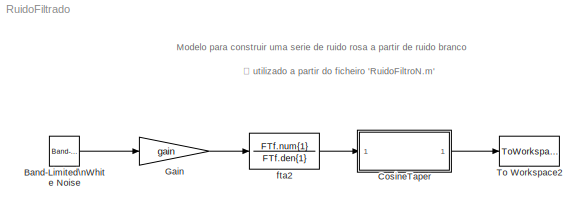
MODEL RuidoFiltrado
KIND model
BLOCK [Reference] Band-Limited\nWhite Noise  REF=simulink/Sources/Band-Limited\nWhite Noise
  Cov = 1
  FunctionWithSeparateData = off
  Ports = [0, 1]
  RTWMemSecDataConstants = Inherit from model
  RTWMemSecDataInternal = Inherit from model
  RTWMemSecDataParameters = Inherit from model
  RTWMemSecFuncExecute = Inherit from model
  RTWMemSecFuncInitTerm = Inherit from model
  SID = 1
  ShowPortLabels = FromPortIcon
  SourceBlock = simulink/Sources/Band-Limited\nWhite Noise
  SourceType = Band-Limited White Noise.
  SystemSampleTime = -1
  Ts = dt
  VectorParams1D = on
  seed = [23341]
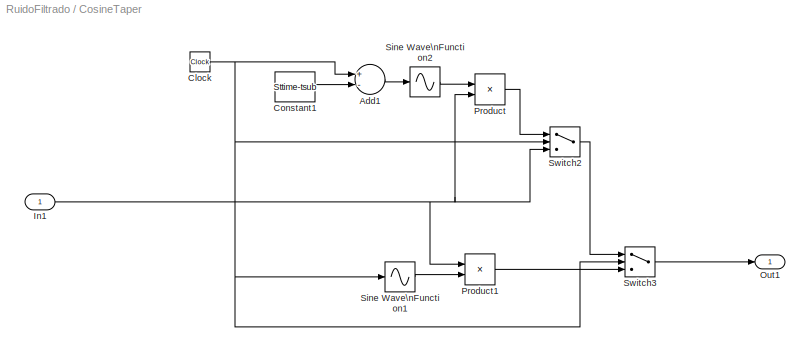
BLOCK [SubSystem] CosineTaper
  FunctionWithSeparateData = off
  MaskHideContents = off
  MinAlgLoopOccurrences = off
  Opaque = off
  Ports = [1, 1]
  PropExecContextOutsideSubsystem = off
  RTWSystemCode = Auto
  RequestExecContextInheritance = off
  SID = 2
  TreatAsAtomicUnit = on
BLOCK [Sum] CosineTaper/Add1
  InputSameDT = off
  Inputs = +-
  OutDataType = sfix(16)
  OutDataTypeMode = Inherit via internal rule
  OutDataTypeStr = Inherit: Inherit via internal rule
  OutScaling = 2^-10
  Ports = [2, 1]
  SID = 4
  SaturateOnIntegerOverflow = off
BLOCK [Clock] CosineTaper/Clock
  Decimation = 10
  SID = 5
BLOCK [Constant] CosineTaper/Constant1
  OutDataType = sfix(16)
  OutScaling = 2^0
  SID = 6
  Value = Sttime-tsub
BLOCK [Inport] CosineTaper/In1
  IconDisplay = Port number
  OutDataType = sfix(16)
  OutScaling = 2^0
  SID = 3
BLOCK [Outport] CosineTaper/Out1
  IconDisplay = Port number
  OutDataType = sfix(16)
  OutScaling = 2^0
  SID = 13
BLOCK [Product] CosineTaper/Product
  InputSameDT = off
  OutDataType = sfix(16)
  OutDataTypeMode = Inherit via internal rule
  OutDataTypeStr = Inherit: Inherit via internal rule
  OutScaling = 2^0
  Ports = [2, 1]
  SID = 7
  SaturateOnIntegerOverflow = off
BLOCK [Product] CosineTaper/Product1
  InputSameDT = off
  OutDataType = sfix(16)
  OutDataTypeMode = Inherit via internal rule
  OutDataTypeStr = Inherit: Inherit via internal rule
  OutScaling = 2^0
  Ports = [2, 1]
  SID = 8
  SaturateOnIntegerOverflow = off
BLOCK [Sin] CosineTaper/Sine Wave\nFunction1
  Amplitude = 0.5
  Bias = 0.5
  Frequency = pi/tsub
  Offset = 0
  Phase = -pi/2
  Ports = [1, 1]
  SID = 9
  SampleTime = 0
  Samples = 10
  TimeSource = Use external signal
BLOCK [Sin] CosineTaper/Sine Wave\nFunction2
  Amplitude = 0.5
  Bias = 0.5
  Frequency = pi/tsub
  Offset = 0
  Phase = pi/2
  Ports = [1, 1]
  SID = 10
  SampleTime = 0
  Samples = 10
  TimeSource = Use external signal
BLOCK [Switch] CosineTaper/Switch2
  InputSameDT = off
  OutDataType = fixdt(1, 16)
  OutScaling = 2^0
  SID = 11
  SaturateOnIntegerOverflow = off
  Threshold = Sttime-tsub
BLOCK [Switch] CosineTaper/Switch3
  InputSameDT = off
  OutDataType = fixdt(1, 16)
  OutScaling = 2^0
  SID = 12
  SaturateOnIntegerOverflow = off
  Threshold = Intime+tsub
BLOCK [Gain] Gain
  Gain = gain
  OutDataType = fixdt(1, 16)
  OutDataTypeMode = Inherit via internal rule
  OutDataTypeStr = Inherit: Inherit via internal rule
  OutScaling = 2^0
  ParamDataTypeStr = Inherit: Inherit via internal rule
  ParameterDataType = fixdt(1, 16)
  ParameterDataTypeMode = Inherit via internal rule
  ParameterScaling = 2^0
  SID = 14
  SaturateOnIntegerOverflow = off
BLOCK [ToWorkspace] To Workspace2
  MaxDataPoints = inf
  Ports = [1]
  SID = 15
  SampleTime = -1
  SaveFormat = Structure With Time
  VariableName = rf
BLOCK [TransferFcn] fta2
  Denominator = FTf.den{1}
  Numerator = FTf.num{1}
  SID = 16
ANNOTATION (root): Modelo para construir uma serie de ruido rosa a partir de ruido branco
ANNOTATION (root): É utilizado a partir do ficheiro 'RuidoFiltroN.m'
LINE Band-Limited\nWhite Noise:1 -> Gain:1
LINE CosineTaper/Add1:1 -> CosineTaper/Sine Wave\nFunction2:1
NET CosineTaper/Clock:1 -> CosineTaper/Add1:1, CosineTaper/Sine Wave\nFunction1:1, CosineTaper/Switch2:2, CosineTaper/Switch3:2
LINE CosineTaper/Constant1:1 -> CosineTaper/Add1:2
NET CosineTaper/In1:1 -> CosineTaper/Product1:1, CosineTaper/Product:2, CosineTaper/Switch2:3
LINE CosineTaper/Product1:1 -> CosineTaper/Switch3:3
LINE CosineTaper/Product:1 -> CosineTaper/Switch2:1
LINE CosineTaper/Sine Wave\nFunction1:1 -> CosineTaper/Product1:2
LINE CosineTaper/Sine Wave\nFunction2:1 -> CosineTaper/Product:1
LINE CosineTaper/Switch2:1 -> CosineTaper/Switch3:1
LINE CosineTaper/Switch3:1 -> CosineTaper/Out1:1
LINE CosineTaper:1 -> To Workspace2:1
LINE Gain:1 -> fta2:1
LINE fta2:1 -> CosineTaper:1
note: NET lines group one-source signal fan-out (src -> all destinations, sorted); 1:1 wires keep LINE
